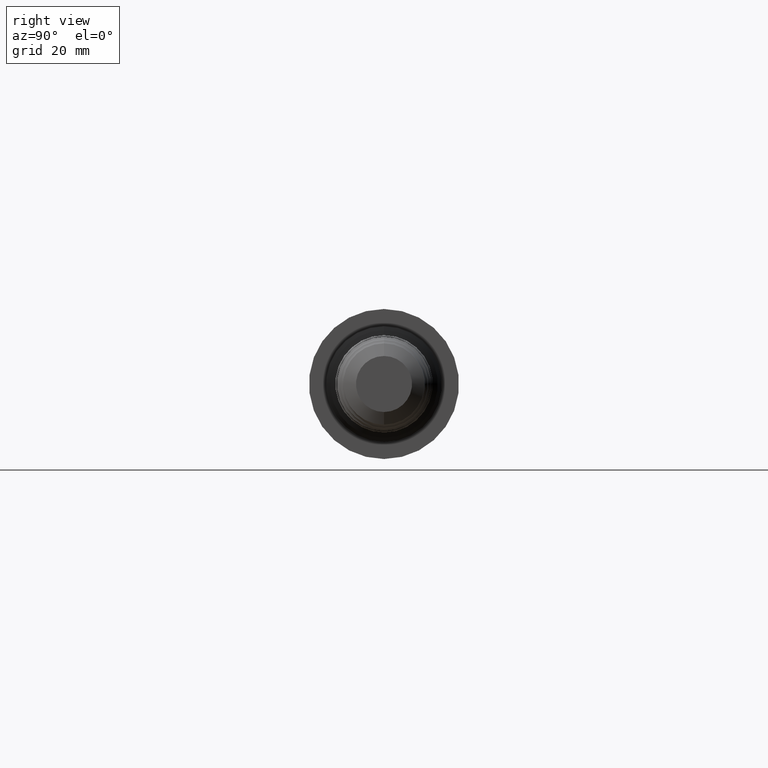
[diagram: clean part render]
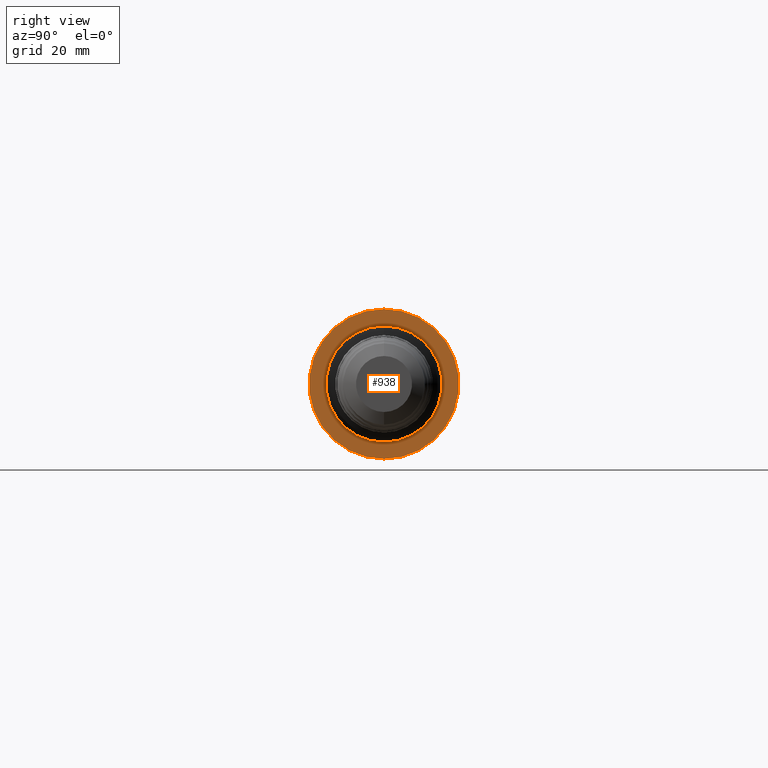
[diagram: same view with one face highlighted and labeled with its STEP entity id]
A machine part, right view. The second image highlights one B-rep face of the part: STEP entity #938.
In plain terms, the highlighted planar face has unit normal (-1, 0, -0).
Its self-contained STEP definition (entity closure, byte-faithful):
#28 = EDGE_CURVE ( 'NONE', #970, #329, #239, .T. ) ;
#34 = DIRECTION ( 'NONE',  ( -1.000000000000000000, -0.0000000000000000000, -0.0000000000000000000 ) ) ;
#59 = CARTESIAN_POINT ( 'NONE',  ( 3.069999999999999396, 7.112196935576865621E-17, -0.5807549524098420957 ) ) ;
#70 = CARTESIAN_POINT ( 'NONE',  ( 3.069999999999999396, 0.0000000000000000000, 0.5807549524098420957 ) ) ;
#108 = EDGE_CURVE ( 'NONE', #826, #507, #987, .T. ) ;
#149 = DIRECTION ( 'NONE',  ( 0.0000000000000000000, 0.0000000000000000000, 1.000000000000000000 ) ) ;
#160 = DIRECTION ( 'NONE',  ( 0.0000000000000000000, 0.0000000000000000000, 1.000000000000000000 ) ) ;
#164 = CARTESIAN_POINT ( 'NONE',  ( 3.069999999999999840, 0.0000000000000000000, 0.0000000000000000000 ) ) ;
#179 = CARTESIAN_POINT ( 'NONE',  ( 3.069999999999999840, 0.0000000000000000000, 0.7500000000000001110 ) ) ;
#184 = EDGE_LOOP ( 'NONE', ( #655, #842 ) ) ;
#231 = CARTESIAN_POINT ( 'NONE',  ( 3.069999999999999840, 0.0000000000000000000, 0.0000000000000000000 ) ) ;
#237 = EDGE_LOOP ( 'NONE', ( #346, #691 ) ) ;
#239 = CIRCLE ( 'NONE', #430, 0.5807549524098420957 ) ;
#247 = CARTESIAN_POINT ( 'NONE',  ( 3.069999999999999396, 0.0000000000000000000, 0.0000000000000000000 ) ) ;
#277 = CIRCLE ( 'NONE', #642, 0.5807549524098420957 ) ;
#282 = AXIS2_PLACEMENT_3D ( 'NONE', #330, #652, #894 ) ;
#329 = VERTEX_POINT ( 'NONE', #70 ) ;
#330 = CARTESIAN_POINT ( 'NONE',  ( 3.069999999999999840, 0.7500000000000001110, 0.0000000000000000000 ) ) ;
#346 = ORIENTED_EDGE ( 'NONE', *, *, #1026, .F. ) ;
#430 = AXIS2_PLACEMENT_3D ( 'NONE', #247, #738, #160 ) ;
#507 = VERTEX_POINT ( 'NONE', #179 ) ;
#527 = CARTESIAN_POINT ( 'NONE',  ( 3.069999999999999396, 0.0000000000000000000, 0.0000000000000000000 ) ) ;
#544 = DIRECTION ( 'NONE',  ( 0.0000000000000000000, 0.0000000000000000000, 1.000000000000000000 ) ) ;
#553 = EDGE_CURVE ( 'NONE', #329, #970, #277, .T. ) ;
#606 = DIRECTION ( 'NONE',  ( 0.0000000000000000000, 0.0000000000000000000, 1.000000000000000000 ) ) ;
#642 = AXIS2_PLACEMENT_3D ( 'NONE', #527, #34, #606 ) ;
#652 = DIRECTION ( 'NONE',  ( -1.000000000000000000, 0.0000000000000000000, -0.0000000000000000000 ) ) ;
#655 = ORIENTED_EDGE ( 'NONE', *, *, #553, .T. ) ;
#659 = DIRECTION ( 'NONE',  ( -1.000000000000000000, -0.0000000000000000000, -0.0000000000000000000 ) ) ;
#671 = AXIS2_PLACEMENT_3D ( 'NONE', #164, #659, #544 ) ;
#676 = FACE_BOUND ( 'NONE', #184, .T. ) ;
#691 = ORIENTED_EDGE ( 'NONE', *, *, #108, .F. ) ;
#725 = DIRECTION ( 'NONE',  ( -1.000000000000000000, -0.0000000000000000000, -0.0000000000000000000 ) ) ;
#738 = DIRECTION ( 'NONE',  ( -1.000000000000000000, -0.0000000000000000000, -0.0000000000000000000 ) ) ;
#806 = PLANE ( 'NONE',  #282 ) ;
#826 = VERTEX_POINT ( 'NONE', #949 ) ;
#842 = ORIENTED_EDGE ( 'NONE', *, *, #28, .T. ) ;
#894 = DIRECTION ( 'NONE',  ( -0.0000000000000000000, 0.0000000000000000000, 1.000000000000000000 ) ) ;
#938 = ADVANCED_FACE ( 'NONE', ( #963, #676 ), #806, .F. ) ;
#949 = CARTESIAN_POINT ( 'NONE',  ( 3.069999999999999840, 9.184850993605150903E-17, -0.7500000000000001110 ) ) ;
#963 = FACE_OUTER_BOUND ( 'NONE', #237, .T. ) ;
#970 = VERTEX_POINT ( 'NONE', #59 ) ;
#987 = CIRCLE ( 'NONE', #993, 0.7500000000000001110 ) ;
#993 = AXIS2_PLACEMENT_3D ( 'NONE', #231, #725, #149 ) ;
#1020 = CIRCLE ( 'NONE', #671, 0.7500000000000001110 ) ;
#1026 = EDGE_CURVE ( 'NONE', #507, #826, #1020, .T. ) ;